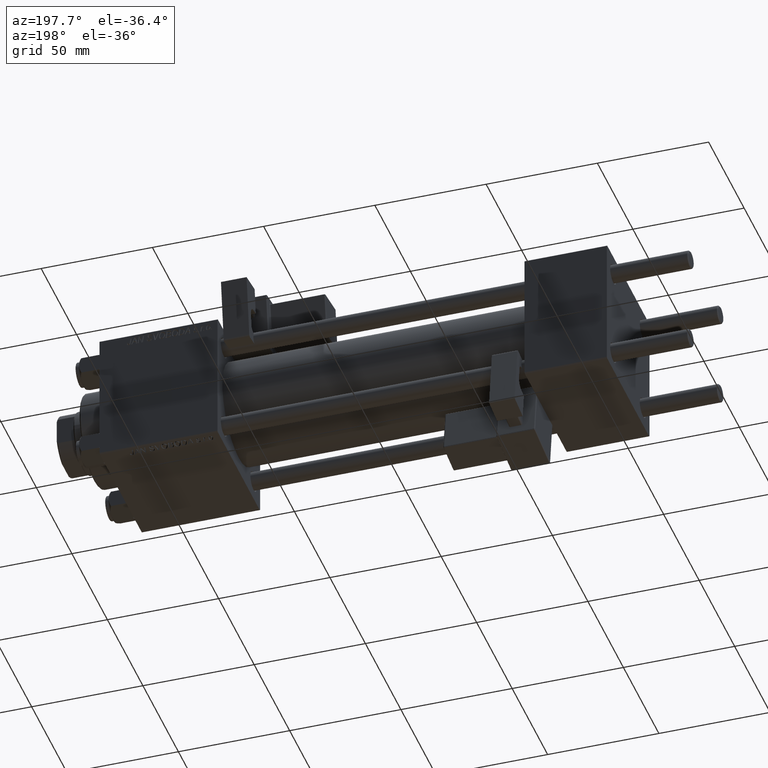
[diagram: clean part render]
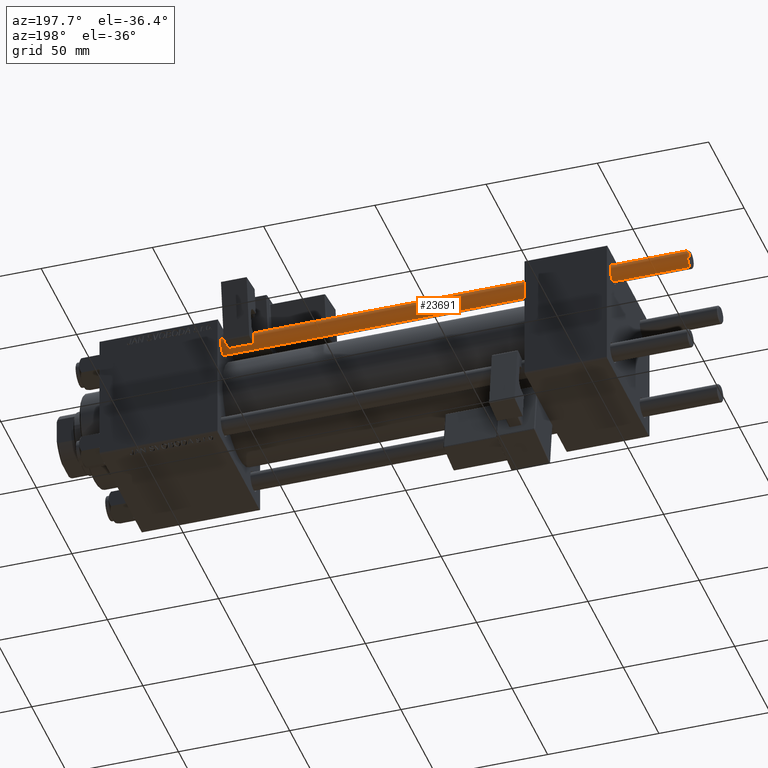
[diagram: same view with one face highlighted and labeled with its STEP entity id]
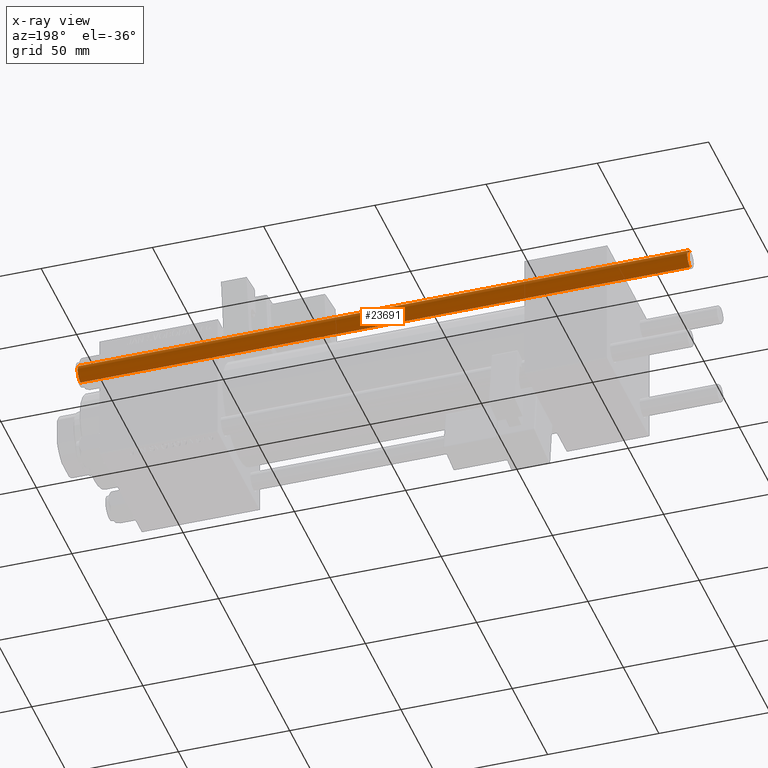
[diagram: x-ray of the same camera — body ghosted, the highlighted face saturated]
A machine part, auxiliary view. The second image highlights one B-rep face of the part: STEP entity #23691.
The next image is the same camera in x-ray: the body ghosted, the highlighted face saturated — about 0% of this face is hidden behind the body in this view.
In plain terms, the highlighted cylindrical surface (edge-blend (fillet) strip) has radius 4 mm, axis along (-1, -0, -0).
Its self-contained STEP definition (entity closure, byte-faithful):
#615 = VECTOR ( 'NONE', #14770, 1000.000000000000000 ) ;
#1343 = EDGE_CURVE ( 'NONE', #32798, #45695, #44828, .T. ) ;
#1745 = CYLINDRICAL_SURFACE ( 'NONE', #32884, 4.000000000000000000 ) ;
#1773 = CARTESIAN_POINT ( 'NONE',  ( 4.000000000000000000, 4.898587196589412829E-16, 274.5000000000000568 ) ) ;
#3007 = CARTESIAN_POINT ( 'NONE',  ( 4.000000000000000000, 4.898587196589412829E-16, 0.5000000000000559552 ) ) ;
#3050 = DIRECTION ( 'NONE',  ( 1.000000000000000000, 0.000000000000000000, 0.000000000000000000 ) ) ;
#5058 = AXIS2_PLACEMENT_3D ( 'NONE', #30978, #30467, #3050 ) ;
#9992 = ORIENTED_EDGE ( 'NONE', *, *, #50636, .T. ) ;
#12211 = EDGE_CURVE ( 'NONE', #40084, #45695, #39257, .T. ) ;
#12407 = DIRECTION ( 'NONE',  ( -0.000000000000000000, -0.000000000000000000, 1.000000000000000000 ) ) ;
#13163 = DIRECTION ( 'NONE',  ( -0.000000000000000000, -0.000000000000000000, -1.000000000000000000 ) ) ;
#13594 = FACE_OUTER_BOUND ( 'NONE', #17073, .T. ) ;
#14263 = VECTOR ( 'NONE', #13163, 1000.000000000000000 ) ;
#14770 = DIRECTION ( 'NONE',  ( -0.000000000000000000, -0.000000000000000000, -1.000000000000000000 ) ) ;
#17073 = EDGE_LOOP ( 'NONE', ( #9992, #47408, #46810, #31361 ) ) ;
#17815 = CARTESIAN_POINT ( 'NONE',  ( 0.000000000000000000, 0.000000000000000000, 275.0000000000000000 ) ) ;
#18760 = AXIS2_PLACEMENT_3D ( 'NONE', #28223, #12407, #28482 ) ;
#20556 = EDGE_CURVE ( 'NONE', #25397, #32798, #40307, .T. ) ;
#23565 = CIRCLE ( 'NONE', #5058, 4.000000000000000000 ) ;
#23691 = ADVANCED_FACE ( 'NONE', ( #13594 ), #1745, .T. ) ;
#25397 = VERTEX_POINT ( 'NONE', #1773 ) ;
#25985 = DIRECTION ( 'NONE',  ( -0.000000000000000000, -0.000000000000000000, -1.000000000000000000 ) ) ;
#27292 = CARTESIAN_POINT ( 'NONE',  ( -4.000000000000000000, 0.000000000000000000, 274.5000000000000568 ) ) ;
#28223 = CARTESIAN_POINT ( 'NONE',  ( 0.000000000000000000, 0.000000000000000000, 0.5000000000000559552 ) ) ;
#28482 = DIRECTION ( 'NONE',  ( 1.000000000000000000, 0.000000000000000000, 0.000000000000000000 ) ) ;
#29238 = CARTESIAN_POINT ( 'NONE',  ( 4.000000000000000000, 4.898587196589412829E-16, 275.0000000000000000 ) ) ;
#30467 = DIRECTION ( 'NONE',  ( 0.000000000000000000, 0.000000000000000000, -1.000000000000000000 ) ) ;
#30978 = CARTESIAN_POINT ( 'NONE',  ( 0.000000000000000000, 0.000000000000000000, 274.5000000000000568 ) ) ;
#31361 = ORIENTED_EDGE ( 'NONE', *, *, #12211, .F. ) ;
#32798 = VERTEX_POINT ( 'NONE', #3007 ) ;
#32884 = AXIS2_PLACEMENT_3D ( 'NONE', #17815, #25985, #42033 ) ;
#39257 = LINE ( 'NONE', #43983, #615 ) ;
#40084 = VERTEX_POINT ( 'NONE', #27292 ) ;
#40307 = LINE ( 'NONE', #29238, #14263 ) ;
#42033 = DIRECTION ( 'NONE',  ( -1.000000000000000000, 0.000000000000000000, 0.000000000000000000 ) ) ;
#43983 = CARTESIAN_POINT ( 'NONE',  ( -4.000000000000000000, 0.000000000000000000, 275.0000000000000000 ) ) ;
#44828 = CIRCLE ( 'NONE', #18760, 4.000000000000000000 ) ;
#45695 = VERTEX_POINT ( 'NONE', #45879 ) ;
#45879 = CARTESIAN_POINT ( 'NONE',  ( -4.000000000000000000, 0.000000000000000000, 0.5000000000000559552 ) ) ;
#46810 = ORIENTED_EDGE ( 'NONE', *, *, #1343, .T. ) ;
#47408 = ORIENTED_EDGE ( 'NONE', *, *, #20556, .T. ) ;
#50636 = EDGE_CURVE ( 'NONE', #40084, #25397, #23565, .T. ) ;